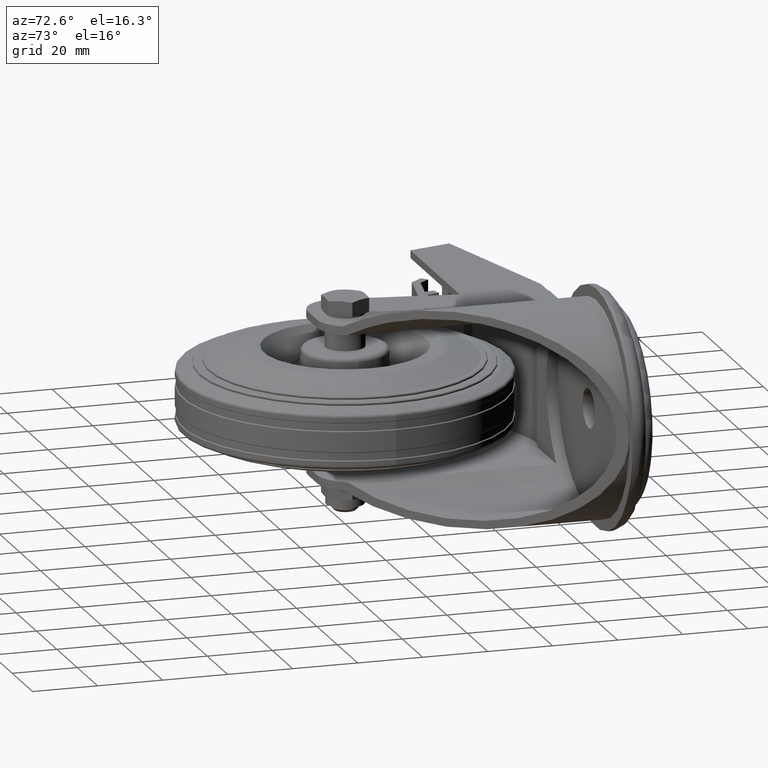
[diagram: clean part render]
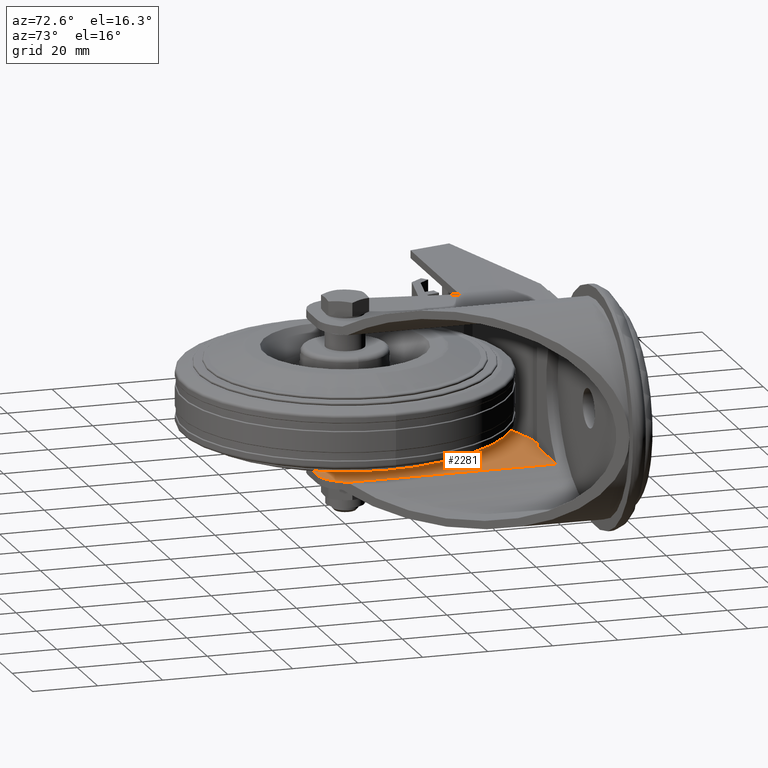
[diagram: same view with one face highlighted and labeled with its STEP entity id]
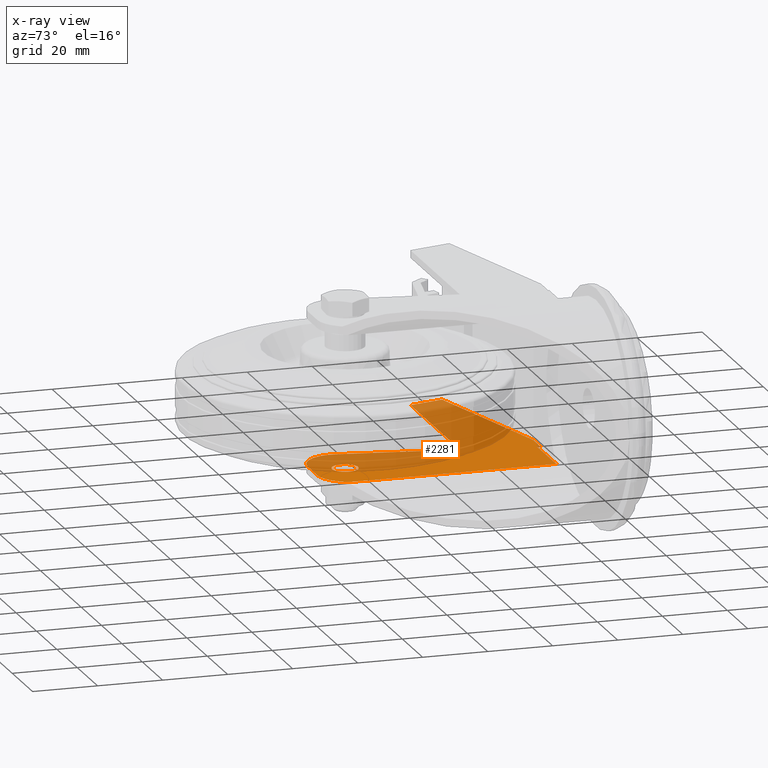
[diagram: x-ray of the same camera — body ghosted, the highlighted face saturated]
A machine part, auxiliary view. The second image highlights one B-rep face of the part: STEP entity #2281.
The next image is the same camera in x-ray: the body ghosted, the highlighted face saturated — about 57% of this face is hidden behind the body in this view.
In plain terms, the highlighted planar face has unit normal (0, 0, 1).
Its self-contained STEP definition (entity closure, byte-faithful):
#184=FACE_BOUND('',#456,.T.);
#220=PLANE('',#2565);
#300=FACE_OUTER_BOUND('',#455,.T.);
#455=EDGE_LOOP('',(#1689,#1690,#1691,#1692,#1693,#1694,#1695,#1696,#1697,
#1698,#1699,#1700));
#456=EDGE_LOOP('',(#1701));
#614=CIRCLE('',#2536,10.);
#620=CIRCLE('',#2550,9.99999999999999);
#628=CIRCLE('',#2566,4.);
#753=LINE('',#3580,#897);
#763=LINE('',#3601,#907);
#773=LINE('',#3634,#917);
#779=LINE('',#3645,#923);
#784=LINE('',#3663,#928);
#799=LINE('',#3703,#943);
#800=LINE('',#3705,#944);
#801=LINE('',#3707,#945);
#802=LINE('',#3709,#946);
#803=LINE('',#3710,#947);
#897=VECTOR('',#2844,1000.);
#907=VECTOR('',#2858,1000.);
#917=VECTOR('',#2886,1000.);
#923=VECTOR('',#2896,1000.);
#928=VECTOR('',#2919,1000.);
#943=VECTOR('',#2956,1000.);
#944=VECTOR('',#2957,1000.);
#945=VECTOR('',#2958,1000.);
#946=VECTOR('',#2959,1000.);
#947=VECTOR('',#2960,1000.);
#1045=VERTEX_POINT('',#3578);
#1046=VERTEX_POINT('',#3579);
#1055=VERTEX_POINT('',#3600);
#1059=VERTEX_POINT('',#3610);
#1060=VERTEX_POINT('',#3611);
#1069=VERTEX_POINT('',#3632);
#1072=VERTEX_POINT('',#3644);
#1076=VERTEX_POINT('',#3661);
#1090=VERTEX_POINT('',#3702);
#1091=VERTEX_POINT('',#3704);
#1092=VERTEX_POINT('',#3706);
#1093=VERTEX_POINT('',#3708);
#1094=VERTEX_POINT('',#3711);
#1253=EDGE_CURVE('',#1045,#1046,#753,.T.);
#1263=EDGE_CURVE('',#1055,#1046,#763,.T.);
#1268=EDGE_CURVE('',#1059,#1060,#614,.T.);
#1279=EDGE_CURVE('',#1069,#1060,#773,.T.);
#1285=EDGE_CURVE('',#1059,#1072,#779,.T.);
#1290=EDGE_CURVE('',#1055,#1072,#620,.T.);
#1296=EDGE_CURVE('',#1076,#1069,#784,.T.);
#1315=EDGE_CURVE('',#1076,#1090,#799,.T.);
#1316=EDGE_CURVE('',#1090,#1091,#800,.T.);
#1317=EDGE_CURVE('',#1091,#1092,#801,.T.);
#1318=EDGE_CURVE('',#1092,#1093,#802,.T.);
#1319=EDGE_CURVE('',#1093,#1045,#803,.T.);
#1320=EDGE_CURVE('',#1094,#1094,#628,.F.);
#1689=ORIENTED_EDGE('',*,*,#1290,.T.);
#1690=ORIENTED_EDGE('',*,*,#1285,.F.);
#1691=ORIENTED_EDGE('',*,*,#1268,.T.);
#1692=ORIENTED_EDGE('',*,*,#1279,.F.);
#1693=ORIENTED_EDGE('',*,*,#1296,.F.);
#1694=ORIENTED_EDGE('',*,*,#1315,.T.);
#1695=ORIENTED_EDGE('',*,*,#1316,.T.);
#1696=ORIENTED_EDGE('',*,*,#1317,.T.);
#1697=ORIENTED_EDGE('',*,*,#1318,.T.);
#1698=ORIENTED_EDGE('',*,*,#1319,.T.);
#1699=ORIENTED_EDGE('',*,*,#1253,.T.);
#1700=ORIENTED_EDGE('',*,*,#1263,.F.);
#1701=ORIENTED_EDGE('',*,*,#1320,.T.);
#2281=ADVANCED_FACE('',(#300,#184),#220,.T.);
#2536=AXIS2_PLACEMENT_3D('',#3612,#2865,#2866);
#2550=AXIS2_PLACEMENT_3D('',#3653,#2907,#2908);
#2565=AXIS2_PLACEMENT_3D('',#3701,#2954,#2955);
#2566=AXIS2_PLACEMENT_3D('',#3712,#2961,#2962);
#2844=DIRECTION('',(1.,0.,0.));
#2858=DIRECTION('',(0.1685477470756,0.985693490368958,0.));
#2865=DIRECTION('center_axis',(0.,0.,1.));
#2866=DIRECTION('ref_axis',(1.,0.,0.));
#2886=DIRECTION('',(-0.608057671362319,-0.79389285693816,0.));
#2896=DIRECTION('',(-1.,0.,0.));
#2907=DIRECTION('center_axis',(0.,0.,1.));
#2908=DIRECTION('ref_axis',(1.,0.,0.));
#2919=DIRECTION('',(0.,-1.,0.));
#2954=DIRECTION('center_axis',(0.,0.,1.));
#2955=DIRECTION('ref_axis',(1.,0.,0.));
#2956=DIRECTION('',(-1.,0.,0.));
#2957=DIRECTION('',(0.,1.,0.));
#2958=DIRECTION('',(-1.,0.,0.));
#2959=DIRECTION('',(-0.965925826289068,-0.258819045102521,0.));
#2960=DIRECTION('',(0.258819045102521,-0.965925826289068,0.));
#2961=DIRECTION('center_axis',(0.,0.,1.));
#2962=DIRECTION('ref_axis',(1.,0.,0.));
#3578=CARTESIAN_POINT('',(-57.,38.,-22.5));
#3579=CARTESIAN_POINT('',(-8.34736669791892,38.,-22.5));
#3580=CARTESIAN_POINT('',(-57.,38.,-22.5));
#3600=CARTESIAN_POINT('',(-14.5569349036896,1.685477470756,-22.5));
#3601=CARTESIAN_POINT('',(-14.5569349036896,1.685477470756,-22.5));
#3610=CARTESIAN_POINT('',(4.69999999999999,-10.,-22.5));
#3611=CARTESIAN_POINT('',(12.6389285693816,-6.08057671362318,-22.5));
#3612=CARTESIAN_POINT('Origin',(4.69999999999999,6.07153216591882E-15,-22.5));
#3632=CARTESIAN_POINT('',(14.408739718026,-3.76987413521415,-22.5));
#3634=CARTESIAN_POINT('',(68.,66.2,-22.5));
#3644=CARTESIAN_POINT('',(-4.70000000000001,-10.,-22.5));
#3645=CARTESIAN_POINT('',(25.,-10.,-22.5));
#3653=CARTESIAN_POINT('Origin',(-4.70000000000001,-5.20417042793042E-15,
-22.5));
#3661=CARTESIAN_POINT('',(14.408739718026,60.5,-22.5));
#3663=CARTESIAN_POINT('',(14.408739718026,-10.,-22.5));
#3701=CARTESIAN_POINT('Origin',(25.,-10.,-22.5));
#3702=CARTESIAN_POINT('',(-4.5,60.5,-22.5));
#3703=CARTESIAN_POINT('',(25.,60.5,-22.5));
#3704=CARTESIAN_POINT('',(-4.5,61.5,-22.5));
#3705=CARTESIAN_POINT('',(-4.5,60.5,-22.5));
#3706=CARTESIAN_POINT('',(-11.6375477592407,61.5,-22.5));
#3707=CARTESIAN_POINT('',(-4.5,61.5,-22.5));
#3708=CARTESIAN_POINT('',(-59.8362918888483,48.5851854342773,-22.5));
#3709=CARTESIAN_POINT('',(-11.6375477592407,61.5,-22.5));
#3710=CARTESIAN_POINT('',(-59.8362918888483,48.5851854342773,-22.5));
#3711=CARTESIAN_POINT('',(4.,0.,-22.5));
#3712=CARTESIAN_POINT('Origin',(0.,0.,-22.5));